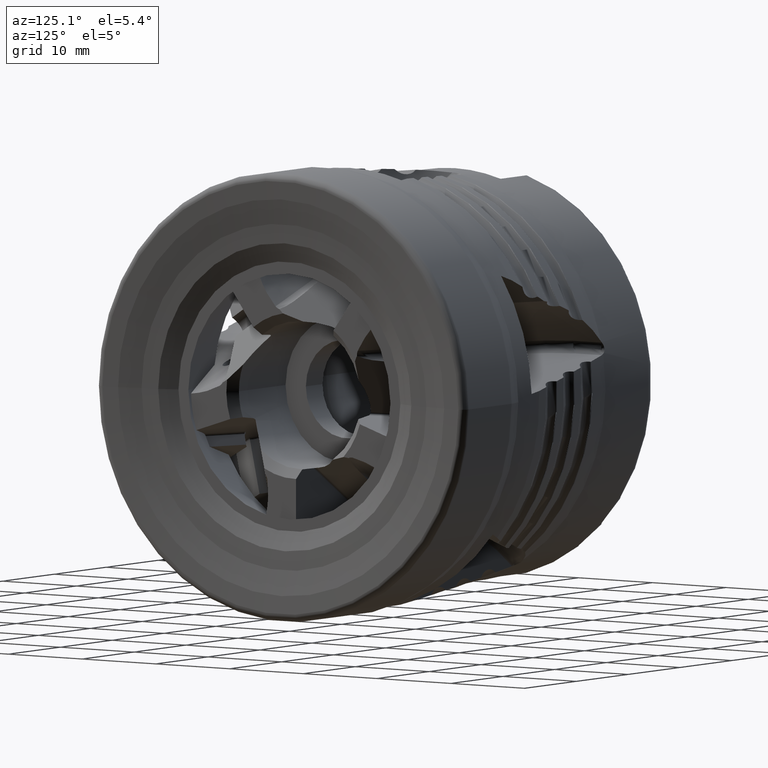
[diagram: clean part render]
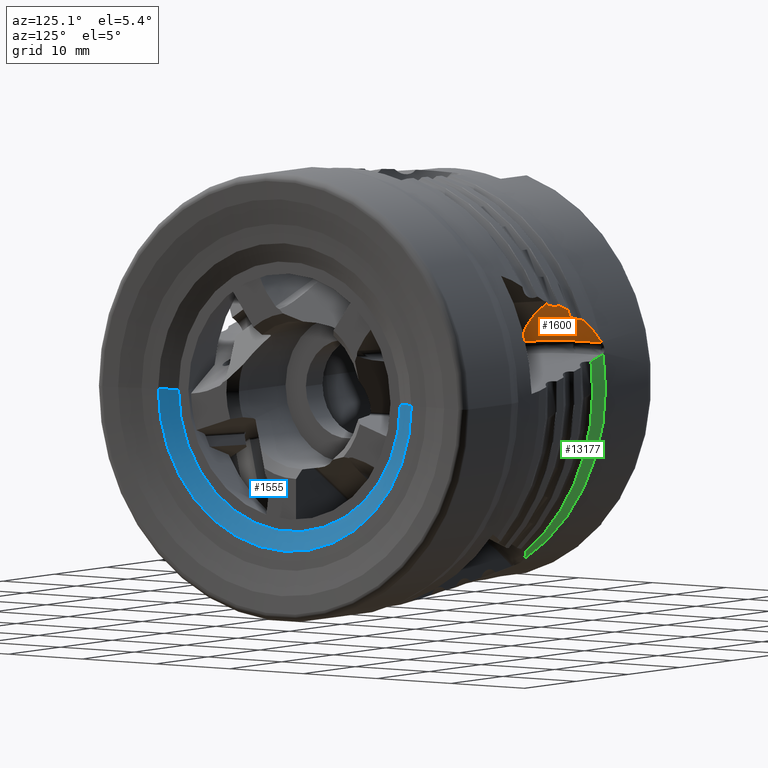
[diagram: same view with three faces highlighted in distinct colors, each labeled with its STEP entity id]
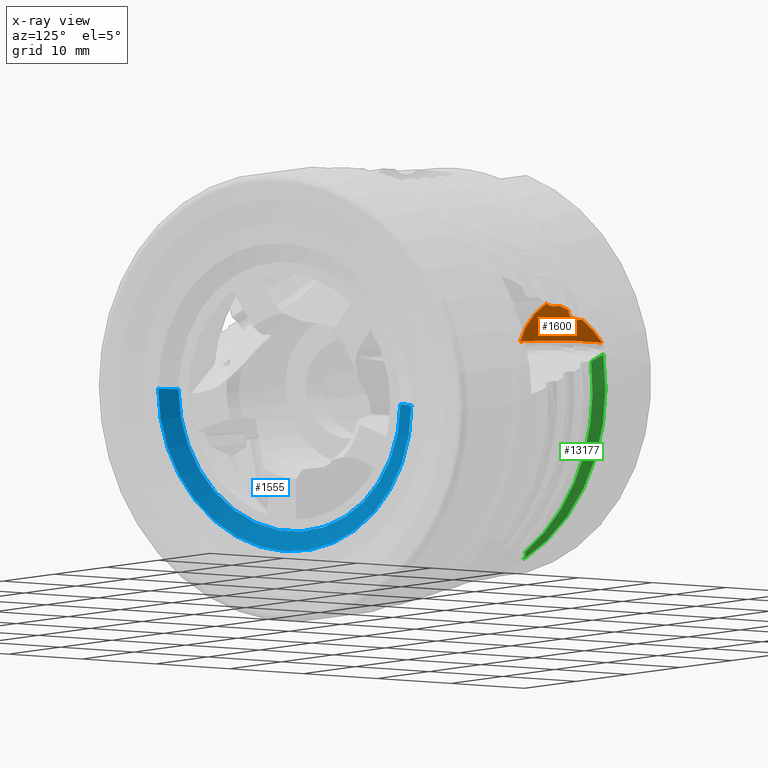
[diagram: x-ray of the same camera — body ghosted, the three highlighted faces saturated]
A machine part, auxiliary view with three faces highlighted in distinct colors.
The next image is the same camera in x-ray (body ghosted, the three faces saturated) — at least one of them is partly hidden behind the body in this view.
Their STEP definitions:

[orange] entity #1600 — the highlighted face is a freeform B-spline surface patch.
#23 = B_SPLINE_CURVE_WITH_KNOTS ( 'NONE', 3,
 ( #1188, #1193, #1194, #1195 ),
 .UNSPECIFIED., .F., .F.,
 ( 4, 4 ),
 ( 1.701886623846052800E-017, 0.0001850924008461767900 ),
 .UNSPECIFIED. ) ;
#371 = CARTESIAN_POINT ( 'NONE',  ( -28.02918776163611300, 23.34968752484936900, 6.983305177823421400 ) ) ;
#392 = CARTESIAN_POINT ( 'NONE',  ( -19.74266194822071800, 18.05995361545534200, 7.477515996077285900 ) ) ;
#590 = CARTESIAN_POINT ( 'NONE',  ( -23.13410390145841000, 18.45040016367276400, 5.564507570242894600 ) ) ;
#859 = CARTESIAN_POINT ( 'NONE',  ( -25.59839837171528400, 21.12059047470936300, 7.348376753287396900 ) ) ;
#863 = CARTESIAN_POINT ( 'NONE',  ( -20.04246726916024800, 17.17169267301922300, 5.523123228956313500 ) ) ;
#864 = CARTESIAN_POINT ( 'NONE',  ( -26.68745432297877000, 26.51678995610124900, 9.530379208750654000 ) ) ;
#865 = CARTESIAN_POINT ( 'NONE',  ( -27.43337010690626000, 24.74215428439808300, 8.533975828335659500 ) ) ;
#868 = CARTESIAN_POINT ( 'NONE',  ( -19.46856705489491200, 19.52373664805949700, 9.052556644253970200 ) ) ;
#869 = CARTESIAN_POINT ( 'NONE',  ( -22.42055498583797000, 20.79637926455402700, 9.075275222186311600 ) ) ;
#870 = CARTESIAN_POINT ( 'NONE',  ( -25.10554184925085200, 22.55554175857613000, 8.900458259448360100 ) ) ;
#903 = CARTESIAN_POINT ( 'NONE',  ( -25.95639487689107800, 20.23999885531328900, 5.400091179956321600 ) ) ;
#931 = CARTESIAN_POINT ( 'NONE',  ( -22.80495667490729500, 19.33738680163348500, 7.514978431458592600 ) ) ;
#983 = CARTESIAN_POINT ( 'NONE',  ( -28.41457220609734000, 22.48039690367457800, 5.035394895905694700 ) ) ;
#1188 = CARTESIAN_POINT ( 'NONE',  ( -28.25000000000000700, 22.40941971069895500, 5.178600991555232000 ) ) ;
#1193 = CARTESIAN_POINT ( 'NONE',  ( -28.29067508918683800, 22.41986492382239100, 5.133401300512721500 ) ) ;
#1194 = CARTESIAN_POINT ( 'NONE',  ( -28.33094578505978900, 22.43025401205935400, 5.087821118683500300 ) ) ;
#1195 = CARTESIAN_POINT ( 'NONE',  ( -28.37079294557039000, 22.44057973421098100, 5.041862869269762000 ) ) ;
#1600 = ADVANCED_FACE ( 'NONE', ( #7932 ), #1798, .T. ) ;
#1798 =( BOUNDED_SURFACE ( )  B_SPLINE_SURFACE ( 3, 3, ( 
 ( #8795, #8821, #9030, #864 ),
 ( #868, #869, #870, #865 ),
 ( #392, #931, #859, #371 ),
 ( #863, #590, #903, #983 ) ),
 .UNSPECIFIED., .F., .F., .T. ) 
 B_SPLINE_SURFACE_WITH_KNOTS ( ( 4, 4 ),
 ( 4, 4 ),
 ( 0.0000000000000000000, 1.000000000000000000 ),
 ( 0.0000000000000000000, 1.000000000000000000 ),
 .UNSPECIFIED. ) 
 GEOMETRIC_REPRESENTATION_ITEM ( )  RATIONAL_B_SPLINE_SURFACE ( (
 ( 1.000000000000000000, 0.9888072030623522600, 0.9888072030623522600, 1.000000000000000000),
 ( 0.9662452202772439100, 0.9554302337347080300, 0.9554302337347080300, 0.9662452202772439100),
 ( 0.9662452202772439100, 0.9554302337347080300, 0.9554302337347080300, 0.9662452202772439100),
 ( 1.000000000000000000, 0.9888072030623522600, 0.9888072030623522600, 1.000000000000000000) ) ) 
 REPRESENTATION_ITEM ( '' )  SURFACE ( )  );
#2133 = AXIS2_PLACEMENT_3D ( 'NONE', #5272, #5285, #5286 ) ;
#2148 = AXIS2_PLACEMENT_3D ( 'NONE', #5742, #5749, #5750 ) ;
#2395 = EDGE_CURVE ( 'NONE', #11985, #11959, #23, .T. ) ;
#2605 = EDGE_CURVE ( 'NONE', #11529, #11663, #9887, .T. ) ;
#3457 = CARTESIAN_POINT ( 'NONE',  ( -25.18743561933139900, 21.91514618876520300, 7.784055257993959000 ) ) ;
#3460 = CARTESIAN_POINT ( 'NONE',  ( -24.19473253949261600, 21.42240248643950900, 8.038781273626336000 ) ) ;
#3462 = CARTESIAN_POINT ( 'NONE',  ( -25.23256172991238300, 21.95625596845688300, 7.787335093006289500 ) ) ;
#3463 = CARTESIAN_POINT ( 'NONE',  ( -25.28972813521011200, 21.97933768867349300, 7.765599049881289200 ) ) ;
#3464 = CARTESIAN_POINT ( 'NONE',  ( -25.34068121597906800, 21.98522670022854400, 7.732731326215263000 ) ) ;
#3468 = CARTESIAN_POINT ( 'NONE',  ( -22.85037459597293700, 21.76093220092776500, 9.047843104657449200 ) ) ;
#3471 = CARTESIAN_POINT ( 'NONE',  ( -21.34068121597906000, 21.68642965459910200, 9.622738569489916600 ) ) ;
#3472 = CARTESIAN_POINT ( 'NONE',  ( -22.90628183181811700, 21.76454627486930000, 9.023860615520638000 ) ) ;
#3473 = CARTESIAN_POINT ( 'NONE',  ( -22.95666942728414700, 21.74804950957423000, 8.988419035667329000 ) ) ;
#3474 = CARTESIAN_POINT ( 'NONE',  ( -22.99010624873757500, 21.71543000889325700, 8.949298482720022800 ) ) ;
#3475 = CARTESIAN_POINT ( 'NONE',  ( -24.36478143769412700, 21.45379761593006800, 7.955116962192193800 ) ) ;
#3476 = CARTESIAN_POINT ( 'NONE',  ( -24.54103020311079000, 21.51086128976649500, 7.885480739733585800 ) ) ;
#3477 = CARTESIAN_POINT ( 'NONE',  ( -24.87831758791096000, 21.67483712185776300, 7.795091812373458500 ) ) ;
#3478 = CARTESIAN_POINT ( 'NONE',  ( -25.04292262895281600, 21.78349519734222300, 7.773551831940227300 ) ) ;
#3479 = CARTESIAN_POINT ( 'NONE',  ( -25.18743561933139900, 21.91514618876520300, 7.784055257993959000 ) ) ;
#3481 = CARTESIAN_POINT ( 'NONE',  ( -21.85188621573652100, 21.70387116033269600, 9.451088346116792500 ) ) ;
#3482 = CARTESIAN_POINT ( 'NONE',  ( -22.35538154565876600, 21.72893381185849300, 9.260179938565990200 ) ) ;
#3483 = CARTESIAN_POINT ( 'NONE',  ( -22.85037459597293700, 21.76093220092776500, 9.047843104657449200 ) ) ;
#3484 = CARTESIAN_POINT ( 'NONE',  ( -21.18743561933139900, 21.62495182169998400, 9.640460252577508300 ) ) ;
#3487 = CARTESIAN_POINT ( 'NONE',  ( -20.19473253947983700, 21.18442558527159400, 9.703499718402046200 ) ) ;
#3489 = CARTESIAN_POINT ( 'NONE',  ( -21.22999600205876500, 21.66276141267124100, 9.647921646028049000 ) ) ;
#3490 = CARTESIAN_POINT ( 'NONE',  ( -21.28633007971094700, 21.68457527982715800, 9.640988361032302800 ) ) ;
#3491 = CARTESIAN_POINT ( 'NONE',  ( -21.34068121597906000, 21.68642965459910200, 9.622738569489916600 ) ) ;
#3496 = CARTESIAN_POINT ( 'NONE',  ( -20.37539430063331400, 21.20429639927806400, 9.660118279451689100 ) ) ;
#3497 = CARTESIAN_POINT ( 'NONE',  ( -20.55183179605546300, 21.25188313034479400, 9.632088927955736700 ) ) ;
#3498 = CARTESIAN_POINT ( 'NONE',  ( -20.89347615710449100, 21.40286317272958500, 9.609800700752062500 ) ) ;
#3499 = CARTESIAN_POINT ( 'NONE',  ( -21.04865967816554900, 21.50166670921064900, 9.616131009460941600 ) ) ;
#3500 = CARTESIAN_POINT ( 'NONE',  ( -21.18743561933139900, 21.62495182169998400, 9.640460252577508300 ) ) ;
#3563 = CARTESIAN_POINT ( 'NONE',  ( -25.34068121597906800, 21.98522670022854400, 7.732731326215263000 ) ) ;
#3567 = CARTESIAN_POINT ( 'NONE',  ( -25.88952891615645400, 22.04866094992705800, 7.378692389376533700 ) ) ;
#3568 = CARTESIAN_POINT ( 'NONE',  ( -26.40956195691040900, 22.11806241324079600, 6.992822743468259700 ) ) ;
#3569 = CARTESIAN_POINT ( 'NONE',  ( -27.38347538738023000, 22.26195806318824900, 6.146577131414710000 ) ) ;
#3570 = CARTESIAN_POINT ( 'NONE',  ( -27.83759337635334300, 22.33649780941008300, 5.686479372701262100 ) ) ;
#3571 = CARTESIAN_POINT ( 'NONE',  ( -28.25000000000000700, 22.40941971069895500, 5.178600991555232000 ) ) ;
#4075 = CARTESIAN_POINT ( 'NONE',  ( -22.99010624873757500, 21.71543000889325700, 8.949298482720022800 ) ) ;
#4084 = CARTESIAN_POINT ( 'NONE',  ( -23.06319354758623400, 21.64412923654237600, 8.863787497519275900 ) ) ;
#4085 = CARTESIAN_POINT ( 'NONE',  ( -23.14535550464276900, 21.58573439084609900, 8.779575812348822300 ) ) ;
#4086 = CARTESIAN_POINT ( 'NONE',  ( -23.32545937177303600, 21.49118834227780900, 8.613536270437782200 ) ) ;
#4087 = CARTESIAN_POINT ( 'NONE',  ( -23.42456122330025900, 21.45495757169680600, 8.530936977890991800 ) ) ;
#4088 = CARTESIAN_POINT ( 'NONE',  ( -23.73412800911147300, 21.38223645317839700, 8.296469142537326000 ) ) ;
#4089 = CARTESIAN_POINT ( 'NONE',  ( -23.96291260898646400, 21.37960293399484300, 8.152837025046286700 ) ) ;
#4090 = CARTESIAN_POINT ( 'NONE',  ( -24.19473253949261600, 21.42240248643950900, 8.038781273626336000 ) ) ;
#4214 = EDGE_CURVE ( 'NONE', #11663, #11959, #10035, .T. ) ;
#4455 = EDGE_CURVE ( 'NONE', #11787, #11781, #12406, .T. ) ;
#4458 = EDGE_CURVE ( 'NONE', #11788, #11565, #12407, .T. ) ;
#4459 = EDGE_CURVE ( 'NONE', #11566, #11787, #12408, .T. ) ;
#4460 = EDGE_CURVE ( 'NONE', #11472, #11788, #12409, .T. ) ;
#4462 = EDGE_CURVE ( 'NONE', #11580, #11472, #12410, .T. ) ;
#4464 = EDGE_CURVE ( 'NONE', #11552, #11580, #12411, .T. ) ;
#4479 = EDGE_CURVE ( 'NONE', #11781, #11985, #12418, .T. ) ;
#4612 = EDGE_CURVE ( 'NONE', #11565, #11566, #12476, .T. ) ;
#4667 = EDGE_CURVE ( 'NONE', #11529, #11552, #12503, .T. ) ;
#5272 = CARTESIAN_POINT ( 'NONE',  ( -20.19710404800476100, 26.28335758556631100, 1.405642204338612800 ) ) ;
#5285 = DIRECTION ( 'NONE',  ( 0.9902680687415702500, -0.04300685335652212900, -0.1323614845610733300 ) ) ;
#5286 = DIRECTION ( 'NONE',  ( -0.1391731009600657200, -0.3060096622280145700, -0.9418008996556839200 ) ) ;
#5742 = CARTESIAN_POINT ( 'NONE',  ( -10.35650689388796200, 40.88593561813092900, -3.613428475310999800 ) ) ;
#5749 = DIRECTION ( 'NONE',  ( -0.1391731009600688800, -0.3060096622280142300, -0.9418008996556838100 ) ) ;
#5750 = DIRECTION ( 'NONE',  ( 0.0000000000000000000, 0.9510565162951502000, -0.3090169943749579400 ) ) ;
#6451 = ORIENTED_EDGE ( 'NONE', *, *, #4455, .F. ) ;
#6506 = ORIENTED_EDGE ( 'NONE', *, *, #4459, .F. ) ;
#6524 = ORIENTED_EDGE ( 'NONE', *, *, #4462, .F. ) ;
#6538 = ORIENTED_EDGE ( 'NONE', *, *, #4479, .F. ) ;
#6548 = ORIENTED_EDGE ( 'NONE', *, *, #4214, .T. ) ;
#6571 = ORIENTED_EDGE ( 'NONE', *, *, #4612, .F. ) ;
#6579 = ORIENTED_EDGE ( 'NONE', *, *, #2395, .F. ) ;
#6586 = ORIENTED_EDGE ( 'NONE', *, *, #4458, .F. ) ;
#6635 = ORIENTED_EDGE ( 'NONE', *, *, #4460, .F. ) ;
#6653 = ORIENTED_EDGE ( 'NONE', *, *, #2605, .T. ) ;
#6659 = ORIENTED_EDGE ( 'NONE', *, *, #4667, .F. ) ;
#6669 = ORIENTED_EDGE ( 'NONE', *, *, #4464, .F. ) ;
#7932 = FACE_OUTER_BOUND ( 'NONE', #12805, .T. ) ;
#8517 = CARTESIAN_POINT ( 'NONE',  ( -19.25182559874816200, 21.38159077489076100, 10.07046365588224100 ) ) ;
#8523 = CARTESIAN_POINT ( 'NONE',  ( -19.38679034356767500, 21.29711773413685100, 9.993800348705619300 ) ) ;
#8524 = CARTESIAN_POINT ( 'NONE',  ( -19.53514142231943000, 21.23914702131206800, 9.923448780764319500 ) ) ;
#8525 = CARTESIAN_POINT ( 'NONE',  ( -19.85799502999151400, 21.17252345937147200, 9.797122770236304800 ) ) ;
#8526 = CARTESIAN_POINT ( 'NONE',  ( -20.02416893217007000, 21.16566545753077800, 9.744456336285207200 ) ) ;
#8527 = CARTESIAN_POINT ( 'NONE',  ( -20.19473253947983700, 21.18442558527159400, 9.703499718402046200 ) ) ;
#8795 = CARTESIAN_POINT ( 'NONE',  ( -19.24793862742486500, 21.41481274934931600, 10.08874972308558800 ) ) ;
#8821 = CARTESIAN_POINT ( 'NONE',  ( -22.01982501726921300, 22.67963364482525200, 10.08739551900663200 ) ) ;
#9030 = CARTESIAN_POINT ( 'NONE',  ( -24.52773409954989200, 24.39954331341416700, 9.899165190382527500 ) ) ;
#9175 = CARTESIAN_POINT ( 'NONE',  ( -21.34068121597906000, 21.68642965459910200, 9.622738569489916600 ) ) ;
#9215 = CARTESIAN_POINT ( 'NONE',  ( -19.25182559874816200, 21.38159077489076100, 10.07046365588224100 ) ) ;
#9233 = CARTESIAN_POINT ( 'NONE',  ( -20.19473253947983700, 21.18442558527159400, 9.703499718402046200 ) ) ;
#9245 = CARTESIAN_POINT ( 'NONE',  ( -22.99010624873757500, 21.71543000889325700, 8.949298482720022800 ) ) ;
#9246 = CARTESIAN_POINT ( 'NONE',  ( -24.19473253949261600, 21.42240248643950900, 8.038781273626336000 ) ) ;
#9259 = CARTESIAN_POINT ( 'NONE',  ( -21.18743561933139900, 21.62495182169998400, 9.640460252577508300 ) ) ;
#9327 = CARTESIAN_POINT ( 'NONE',  ( -20.04246726916024100, 17.17169267301925100, 5.523123228956379200 ) ) ;
#9432 = CARTESIAN_POINT ( 'NONE',  ( -25.34068121597906800, 21.98522670022854400, 7.732731326215263000 ) ) ;
#9438 = CARTESIAN_POINT ( 'NONE',  ( -25.18743561933139900, 21.91514618876520300, 7.784055257993959000 ) ) ;
#9439 = CARTESIAN_POINT ( 'NONE',  ( -22.85037459597293700, 21.76093220092776500, 9.047843104657449200 ) ) ;
#9511 = CARTESIAN_POINT ( 'NONE',  ( -28.37079294557039000, 22.44057973421098100, 5.041862869269762000 ) ) ;
#9535 = CARTESIAN_POINT ( 'NONE',  ( -28.25000000000000700, 22.40941971069895500, 5.178600991555232000 ) ) ;
#9887 = CIRCLE ( 'NONE', #2133, 10.00000000000000000 ) ;
#10035 = CIRCLE ( 'NONE', #2148, 27.19668589912885900 ) ;
#11472 = VERTEX_POINT ( 'NONE', #9175 ) ;
#11529 = VERTEX_POINT ( 'NONE', #9215 ) ;
#11552 = VERTEX_POINT ( 'NONE', #9233 ) ;
#11565 = VERTEX_POINT ( 'NONE', #9245 ) ;
#11566 = VERTEX_POINT ( 'NONE', #9246 ) ;
#11580 = VERTEX_POINT ( 'NONE', #9259 ) ;
#11663 = VERTEX_POINT ( 'NONE', #9327 ) ;
#11781 = VERTEX_POINT ( 'NONE', #9432 ) ;
#11787 = VERTEX_POINT ( 'NONE', #9438 ) ;
#11788 = VERTEX_POINT ( 'NONE', #9439 ) ;
#11959 = VERTEX_POINT ( 'NONE', #9511 ) ;
#11985 = VERTEX_POINT ( 'NONE', #9535 ) ;
#12406 = B_SPLINE_CURVE_WITH_KNOTS ( 'NONE', 3,
 ( #3457, #3462, #3463, #3464 ),
 .UNSPECIFIED., .F., .F.,
 ( 4, 4 ),
 ( 0.0000000000000000000, 0.0001803519811254792400 ),
 .UNSPECIFIED. ) ;
#12407 = B_SPLINE_CURVE_WITH_KNOTS ( 'NONE', 3,
 ( #3468, #3472, #3473, #3474 ),
 .UNSPECIFIED., .F., .F.,
 ( 4, 4 ),
 ( 0.0000000000000000000, 0.0001801747978216670100 ),
 .UNSPECIFIED. ) ;
#12408 = B_SPLINE_CURVE_WITH_KNOTS ( 'NONE', 3,
 ( #3460, #3475, #3476, #3477, #3478, #3479 ),
 .UNSPECIFIED., .F., .F.,
 ( 4, 2, 4 ),
 ( 0.001573651982369739100, 0.002150819323353600800, 0.002727986664337463500 ),
 .UNSPECIFIED. ) ;
#12409 = B_SPLINE_CURVE_WITH_KNOTS ( 'NONE', 3,
 ( #3471, #3481, #3482, #3483 ),
 .UNSPECIFIED., .F., .F.,
 ( 4, 4 ),
 ( 0.0000000000000000000, 0.001617167130043064300 ),
 .UNSPECIFIED. ) ;
#12410 = B_SPLINE_CURVE_WITH_KNOTS ( 'NONE', 3,
 ( #3484, #3489, #3490, #3491 ),
 .UNSPECIFIED., .F., .F.,
 ( 4, 4 ),
 ( 0.0000000000000000000, 0.0001696988994306565500 ),
 .UNSPECIFIED. ) ;
#12411 = B_SPLINE_CURVE_WITH_KNOTS ( 'NONE', 3,
 ( #3487, #3496, #3497, #3498, #3499, #3500 ),
 .UNSPECIFIED., .F., .F.,
 ( 4, 2, 4 ),
 ( 0.001044719497144171500, 0.001598005357012170700, 0.002151291216880170100 ),
 .UNSPECIFIED. ) ;
#12418 = B_SPLINE_CURVE_WITH_KNOTS ( 'NONE', 3,
 ( #3563, #3567, #3568, #3569, #3570, #3571 ),
 .UNSPECIFIED., .F., .F.,
 ( 4, 2, 4 ),
 ( 8.673617379884035500E-018, 0.001947283830340336200, 0.003894567660680663600 ),
 .UNSPECIFIED. ) ;
#12476 = B_SPLINE_CURVE_WITH_KNOTS ( 'NONE', 3,
 ( #4075, #4084, #4085, #4086, #4087, #4088, #4089, #4090 ),
 .UNSPECIFIED., .F., .F.,
 ( 4, 2, 2, 4 ),
 ( 0.0000000000000000000, 0.0003934129955924347700, 0.0007868259911848695400, 0.001573651982369739100 ),
 .UNSPECIFIED. ) ;
#12503 = B_SPLINE_CURVE_WITH_KNOTS ( 'NONE', 3,
 ( #8517, #8523, #8524, #8525, #8526, #8527 ),
 .UNSPECIFIED., .F., .F.,
 ( 4, 2, 4 ),
 ( 1.725442162543386700E-015, 0.0005223597485729484400, 0.001044719497144171500 ),
 .UNSPECIFIED. ) ;
#12805 = EDGE_LOOP ( 'NONE', ( #6538, #6451, #6506, #6571, #6586, #6635, #6524, #6669, #6659, #6653, #6548, #6579 ) ) ;

[blue] entity #1555 — the highlighted conical surface has half-angle 67.091 deg.
#177 = DIRECTION ( 'NONE',  ( -1.231745265854573400E-016, 1.000000000000000000, 0.0000000000000000000 ) ) ;
#178 = DIRECTION ( 'NONE',  ( 1.000000000000000000, 1.231745265854573400E-016, -0.0000000000000000000 ) ) ;
#180 = CARTESIAN_POINT ( 'NONE',  ( 8.673617379884035500E-016, -8.063812257034417400E-016, 0.0000000000000000000 ) ) ;
#546 = ORIENTED_EDGE ( 'NONE', *, *, #4613, .T. ) ;
#1555 = ADVANCED_FACE ( 'NONE', ( #7865 ), #7868, .F. ) ;
#2090 = AXIS2_PLACEMENT_3D ( 'NONE', #180, #178, #177 ) ;
#2122 = AXIS2_PLACEMENT_3D ( 'NONE', #5177, #5178, #5179 ) ;
#2486 = EDGE_CURVE ( 'NONE', #12172, #12174, #9780, .T. ) ;
#2575 = EDGE_CURVE ( 'NONE', #11672, #11674, #9861, .T. ) ;
#2779 = AXIS2_PLACEMENT_3D ( 'NONE', #11349, #11394, #11417 ) ;
#4070 = CARTESIAN_POINT ( 'NONE',  ( -9.855674892128189900E-016, 15.04312034774233500, 0.0000000000000000000 ) ) ;
#4071 = DIRECTION ( 'NONE',  ( 0.3892650519578416100, 0.9211257890886883600, 0.0000000000000000000 ) ) ;
#4092 = CARTESIAN_POINT ( 'NONE',  ( 2.720290965189626100E-015, -15.04312034774233500, 1.842250918305106800E-015 ) ) ;
#4093 = DIRECTION ( 'NONE',  ( 0.3892650519578417800, -0.9211257890886882500, 1.128053749219541900E-016 ) ) ;
#4609 = EDGE_CURVE ( 'NONE', #12174, #11674, #10343, .T. ) ;
#4613 = EDGE_CURVE ( 'NONE', #12172, #11672, #10338, .T. ) ;
#5177 = CARTESIAN_POINT ( 'NONE',  ( 0.8942181524149691600, -6.962363281156056700E-016, 0.0000000000000000000 ) ) ;
#5178 = DIRECTION ( 'NONE',  ( 1.000000000000000000, 1.231745265854573400E-016, -0.0000000000000000000 ) ) ;
#5179 = DIRECTION ( 'NONE',  ( -1.200518033053443500E-016, 1.000000000000000000, 0.0000000000000000000 ) ) ;
#7636 = EDGE_LOOP ( 'NONE', ( #13202, #546, #13104, #13082 ) ) ;
#7865 = FACE_OUTER_BOUND ( 'NONE', #7636, .T. ) ;
#7868 = CONICAL_SURFACE ( 'NONE', #2779, 15.04312034774233500, 1.170962748953455100 ) ;
#9334 = CARTESIAN_POINT ( 'NONE',  ( 0.8942181524149711600, -17.15912690193429300, 2.101386983661707500E-015 ) ) ;
#9335 = CARTESIAN_POINT ( 'NONE',  ( 0.8942181524149670500, 17.15912690193429300, 0.0000000000000000000 ) ) ;
#9780 = CIRCLE ( 'NONE', #2090, 15.04312034774233500 ) ;
#9861 = CIRCLE ( 'NONE', #2122, 17.15912690193429300 ) ;
#10338 = LINE ( 'NONE', #4092, #10346 ) ;
#10343 = LINE ( 'NONE', #4070, #10344 ) ;
#10344 = VECTOR ( 'NONE', #4071, 1000.000000000000000 ) ;
#10346 = VECTOR ( 'NONE', #4093, 1000.000000000000100 ) ;
#10711 = CARTESIAN_POINT ( 'NONE',  ( -9.855674892128189900E-016, 15.04312034774233500, 0.0000000000000000000 ) ) ;
#10726 = CARTESIAN_POINT ( 'NONE',  ( 2.720290965189625700E-015, -15.04312034774233500, 1.971818950983407000E-015 ) ) ;
#11349 = CARTESIAN_POINT ( 'NONE',  ( 8.673617379884035500E-016, -8.063812257034417400E-016, 0.0000000000000000000 ) ) ;
#11394 = DIRECTION ( 'NONE',  ( 1.000000000000000000, 1.231745265854573400E-016, -0.0000000000000000000 ) ) ;
#11417 = DIRECTION ( 'NONE',  ( -1.231745265854573400E-016, 1.000000000000000000, 0.0000000000000000000 ) ) ;
#11672 = VERTEX_POINT ( 'NONE', #9334 ) ;
#11674 = VERTEX_POINT ( 'NONE', #9335 ) ;
#12172 = VERTEX_POINT ( 'NONE', #10726 ) ;
#12174 = VERTEX_POINT ( 'NONE', #10711 ) ;
#13082 = ORIENTED_EDGE ( 'NONE', *, *, #4609, .F. ) ;
#13104 = ORIENTED_EDGE ( 'NONE', *, *, #2575, .T. ) ;
#13202 = ORIENTED_EDGE ( 'NONE', *, *, #2486, .F. ) ;

[green] entity #13177 — the highlighted conical surface has half-angle 5.994 deg.
#149 = AXIS2_PLACEMENT_3D ( 'NONE', #10989, #10988, #10987 ) ;
#1196 = CARTESIAN_POINT ( 'NONE',  ( -28.24999999999999600, 0.0000000000000000000, 0.0000000000000000000 ) ) ;
#1209 = DIRECTION ( 'NONE',  ( 1.000000000000000000, -0.0000000000000000000, -0.0000000000000000000 ) ) ;
#1210 = DIRECTION ( 'NONE',  ( 0.0000000000000000000, 0.0000000000000000000, -1.000000000000000000 ) ) ;
#1877 =( BOUNDED_CURVE ( )  B_SPLINE_CURVE ( 3, ( #3858, #3882, #3883, #3884 ),
 .UNSPECIFIED., .F., .T. ) 
 B_SPLINE_CURVE_WITH_KNOTS ( ( 4, 4 ),
 ( 2.673960306243182000, 2.685593635761927000 ),
 .UNSPECIFIED. ) 
 CURVE ( )  GEOMETRIC_REPRESENTATION_ITEM ( )  RATIONAL_B_SPLINE_CURVE ( ( 1.000000000000000000, 0.9999887221688231700, 0.9999887221688231700, 1.000000000000000000 ) ) 
 REPRESENTATION_ITEM ( '' )  );
#2060 = AXIS2_PLACEMENT_3D ( 'NONE', #1196, #1209, #1210 ) ;
#2240 = AXIS2_PLACEMENT_3D ( 'NONE', #3556, #3557, #3558 ) ;
#2397 = EDGE_CURVE ( 'NONE', #12120, #12124, #9720, .T. ) ;
#3545 = CARTESIAN_POINT ( 'NONE',  ( -25.34068121597906000, 14.14807319211337400, -18.51964772274235200 ) ) ;
#3551 = CARTESIAN_POINT ( 'NONE',  ( -25.88952891615645400, 13.83096441539295400, -18.68938132742802700 ) ) ;
#3552 = CARTESIAN_POINT ( 'NONE',  ( -26.40956195691040900, 13.48542680580983300, -18.87462631955209200 ) ) ;
#3553 = CARTESIAN_POINT ( 'NONE',  ( -27.38347538738023000, 12.72506560333052400, -19.27298349064092500 ) ) ;
#3554 = CARTESIAN_POINT ( 'NONE',  ( -27.83759337635333300, 12.31052068011223400, -19.48605302852446600 ) ) ;
#3555 = CARTESIAN_POINT ( 'NONE',  ( -28.24999999999999600, 11.85003374299826900, -19.71234892877563600 ) ) ;
#3556 = CARTESIAN_POINT ( 'NONE',  ( -25.34068121597906800, 0.0000000000000000000, 0.0000000000000000000 ) ) ;
#3557 = DIRECTION ( 'NONE',  ( 1.000000000000000000, -0.0000000000000000000, -0.0000000000000000000 ) ) ;
#3558 = DIRECTION ( 'NONE',  ( 0.0000000000000000000, 0.0000000000000000000, -1.000000000000000000 ) ) ;
#3566 = CARTESIAN_POINT ( 'NONE',  ( -28.24999999999999600, 22.68036929925006000, 3.821105658004627400 ) ) ;
#3576 = CARTESIAN_POINT ( 'NONE',  ( -28.14826961748661600, 22.70140324208967200, 3.760552839433076100 ) ) ;
#3577 = CARTESIAN_POINT ( 'NONE',  ( -28.03780653122390000, 22.71938672105936500, 3.722293631971392200 ) ) ;
#3578 = CARTESIAN_POINT ( 'NONE',  ( -27.92119101465336000, 22.73544591694755100, 3.699843014034724000 ) ) ;
#3858 = CARTESIAN_POINT ( 'NONE',  ( -25.34068121597906000, 23.08401309714765400, 3.205256020131394700 ) ) ;
#3882 = CARTESIAN_POINT ( 'NONE',  ( -26.21089899249763600, 22.96870579728117100, 3.371316653977057200 ) ) ;
#3883 = CARTESIAN_POINT ( 'NONE',  ( -27.07107862634967100, 22.85251542683908400, 3.536180844588661600 ) ) ;
#3884 = CARTESIAN_POINT ( 'NONE',  ( -27.92119101465336000, 22.73544591694755100, 3.699843014034724000 ) ) ;
#4475 = EDGE_CURVE ( 'NONE', #11829, #12120, #12416, .T. ) ;
#4476 = EDGE_CURVE ( 'NONE', #11829, #11572, #10254, .T. ) ;
#4481 = EDGE_CURVE ( 'NONE', #12124, #11789, #12419, .T. ) ;
#4558 = EDGE_CURVE ( 'NONE', #11572, #11789, #1877, .T. ) ;
#9252 = CARTESIAN_POINT ( 'NONE',  ( -25.34068121597906000, 23.08401309714765400, 3.205256020131394700 ) ) ;
#9440 = CARTESIAN_POINT ( 'NONE',  ( -27.92119101465336000, 22.73544591694755100, 3.699843014034724000 ) ) ;
#9466 = CARTESIAN_POINT ( 'NONE',  ( -25.34068121597906000, 14.14807319211337400, -18.51964772274235200 ) ) ;
#9670 = CARTESIAN_POINT ( 'NONE',  ( -28.24999999999999600, 11.85003374299826900, -19.71234892877563600 ) ) ;
#9674 = CARTESIAN_POINT ( 'NONE',  ( -28.24999999999999600, 22.68036929925006000, 3.821105658004627400 ) ) ;
#9720 = CIRCLE ( 'NONE', #2060, 22.99999999999999300 ) ;
#10254 = CIRCLE ( 'NONE', #2240, 23.30547847232219300 ) ;
#10587 = CONICAL_SURFACE ( 'NONE', #149, 23.30547847232219300, 0.1046166576325205800 ) ;
#10588 = FACE_OUTER_BOUND ( 'NONE', #12745, .T. ) ;
#10987 = DIRECTION ( 'NONE',  ( 0.0000000000000000000, 0.0000000000000000000, -1.000000000000000000 ) ) ;
#10988 = DIRECTION ( 'NONE',  ( 1.000000000000000000, -0.0000000000000000000, -0.0000000000000000000 ) ) ;
#10989 = CARTESIAN_POINT ( 'NONE',  ( -25.34068121597906800, 0.0000000000000000000, 0.0000000000000000000 ) ) ;
#11572 = VERTEX_POINT ( 'NONE', #9252 ) ;
#11789 = VERTEX_POINT ( 'NONE', #9440 ) ;
#11829 = VERTEX_POINT ( 'NONE', #9466 ) ;
#12120 = VERTEX_POINT ( 'NONE', #9670 ) ;
#12124 = VERTEX_POINT ( 'NONE', #9674 ) ;
#12416 = B_SPLINE_CURVE_WITH_KNOTS ( 'NONE', 3,
 ( #3545, #3551, #3552, #3553, #3554, #3555 ),
 .UNSPECIFIED., .F., .F.,
 ( 4, 2, 4 ),
 ( 0.0000000000000000000, 0.001947283830340326400, 0.003894567660680652800 ),
 .UNSPECIFIED. ) ;
#12419 = B_SPLINE_CURVE_WITH_KNOTS ( 'NONE', 3,
 ( #3566, #3576, #3577, #3578 ),
 .UNSPECIFIED., .F., .F.,
 ( 4, 4 ),
 ( 7.410741937918042400E-018, 0.0003547582437157126400 ),
 .UNSPECIFIED. ) ;
#12745 = EDGE_LOOP ( 'NONE', ( #12885, #12803, #13031, #12946, #12948 ) ) ;
#12803 = ORIENTED_EDGE ( 'NONE', *, *, #4481, .T. ) ;
#12885 = ORIENTED_EDGE ( 'NONE', *, *, #2397, .T. ) ;
#12946 = ORIENTED_EDGE ( 'NONE', *, *, #4476, .F. ) ;
#12948 = ORIENTED_EDGE ( 'NONE', *, *, #4475, .T. ) ;
#13031 = ORIENTED_EDGE ( 'NONE', *, *, #4558, .F. ) ;
#13177 = ADVANCED_FACE ( 'NONE', ( #10588 ), #10587, .T. ) ;